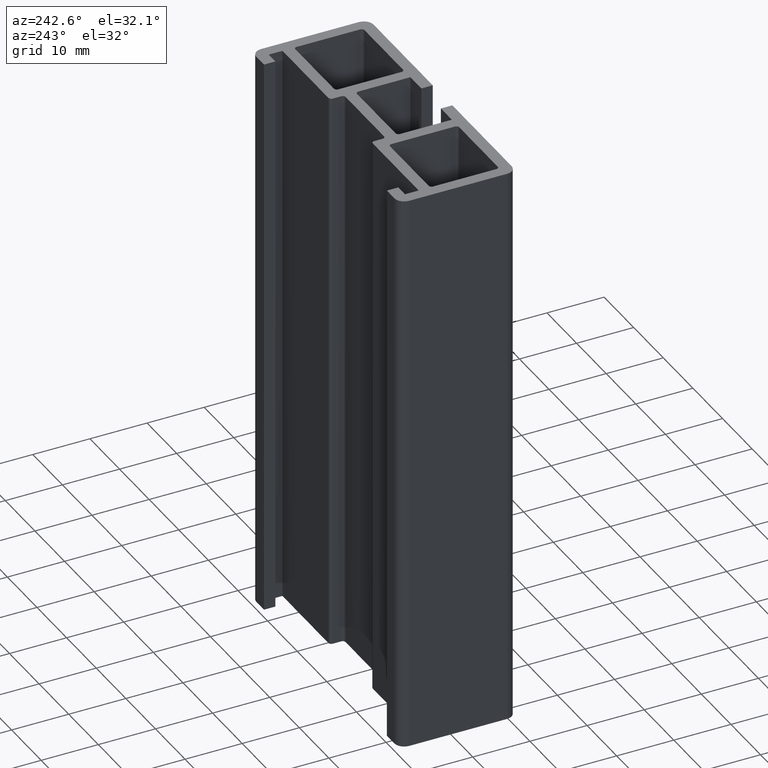
[diagram: clean part render]
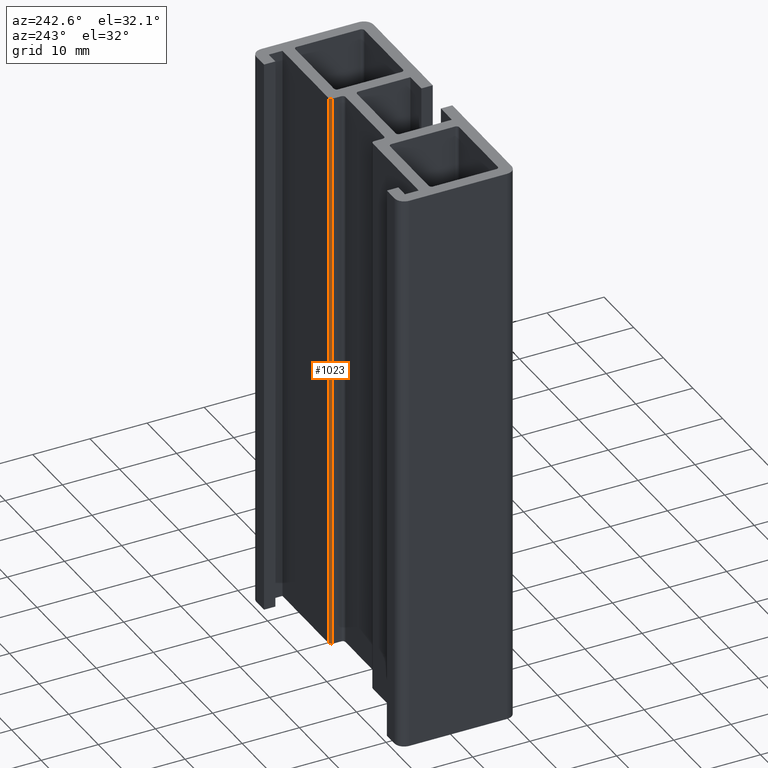
[diagram: same view with one face highlighted and labeled with its STEP entity id]
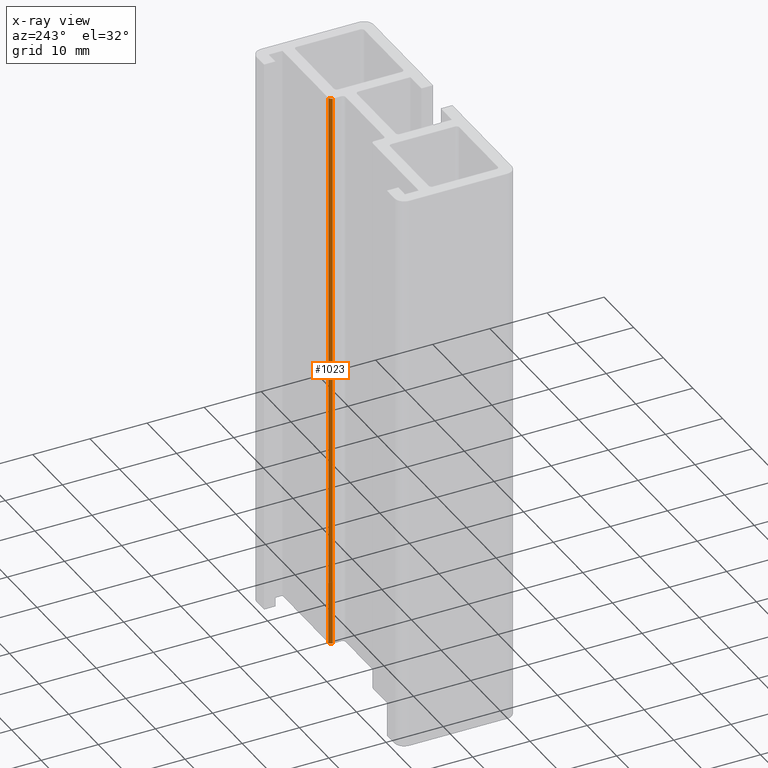
[diagram: x-ray of the same camera — body ghosted, the highlighted face saturated]
A machine part, auxiliary view. The second image highlights one B-rep face of the part: STEP entity #1023.
The next image is the same camera in x-ray: the body ghosted, the highlighted face saturated — about 0% of this face is hidden behind the body in this view.
In plain terms, the highlighted cylindrical surface (edge-blend (fillet) strip) has radius 0.5 mm, axis along (0, 0, 1).
Its self-contained STEP definition (entity closure, byte-faithful):
#83=FACE_OUTER_BOUND('',#135,.T.);
#135=EDGE_LOOP('',(#795,#796,#797,#798));
#225=LINE('',#1610,#339);
#226=LINE('',#1616,#340);
#339=VECTOR('',#1313,100.);
#340=VECTOR('',#1320,100.);
#415=CIRCLE('',#1104,0.5);
#416=CIRCLE('',#1105,0.5);
#485=VERTEX_POINT('',#1606);
#486=VERTEX_POINT('',#1608);
#487=VERTEX_POINT('',#1612);
#488=VERTEX_POINT('',#1614);
#615=EDGE_CURVE('',#485,#486,#225,.T.);
#616=EDGE_CURVE('',#487,#485,#415,.T.);
#617=EDGE_CURVE('',#488,#486,#416,.T.);
#618=EDGE_CURVE('',#487,#488,#226,.T.);
#795=ORIENTED_EDGE('',*,*,#616,.T.);
#796=ORIENTED_EDGE('',*,*,#615,.T.);
#797=ORIENTED_EDGE('',*,*,#617,.F.);
#798=ORIENTED_EDGE('',*,*,#618,.F.);
#988=CYLINDRICAL_SURFACE('',#1103,0.5);
#1023=ADVANCED_FACE('',(#83),#988,.T.);
#1103=AXIS2_PLACEMENT_3D('',#1611,#1314,#1315);
#1104=AXIS2_PLACEMENT_3D('',#1613,#1316,#1317);
#1105=AXIS2_PLACEMENT_3D('',#1615,#1318,#1319);
#1313=DIRECTION('',(0.,0.,1.));
#1314=DIRECTION('center_axis',(0.,0.,1.));
#1315=DIRECTION('ref_axis',(0.,1.,0.));
#1316=DIRECTION('center_axis',(0.,0.,1.));
#1317=DIRECTION('ref_axis',(0.,1.,0.));
#1318=DIRECTION('center_axis',(0.,0.,1.));
#1319=DIRECTION('ref_axis',(0.,1.,0.));
#1320=DIRECTION('',(0.,0.,1.));
#1606=CARTESIAN_POINT('',(7.00000000000001,5.34999999127336,0.));
#1608=CARTESIAN_POINT('',(7.00000000000001,5.34999999127336,100.));
#1610=CARTESIAN_POINT('',(7.00000000000001,5.34999999127336,0.));
#1611=CARTESIAN_POINT('Origin',(7.5,5.35,0.));
#1612=CARTESIAN_POINT('',(7.5,5.84999999999999,0.));
#1613=CARTESIAN_POINT('Origin',(7.5,5.35,0.));
#1614=CARTESIAN_POINT('',(7.5,5.84999999999999,100.));
#1615=CARTESIAN_POINT('Origin',(7.5,5.35,100.));
#1616=CARTESIAN_POINT('',(7.5,5.84999999999999,0.));